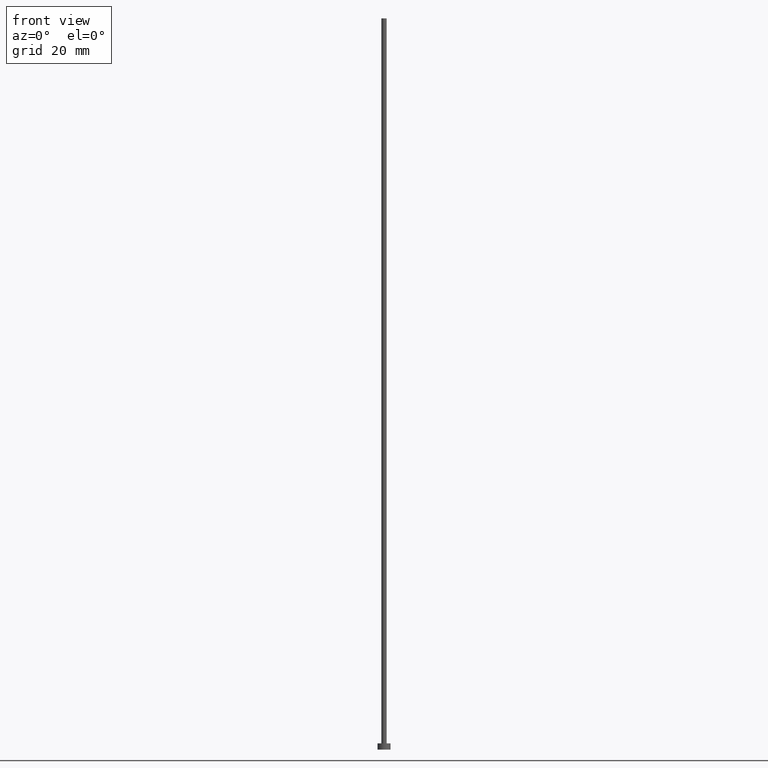
[diagram: clean part render]
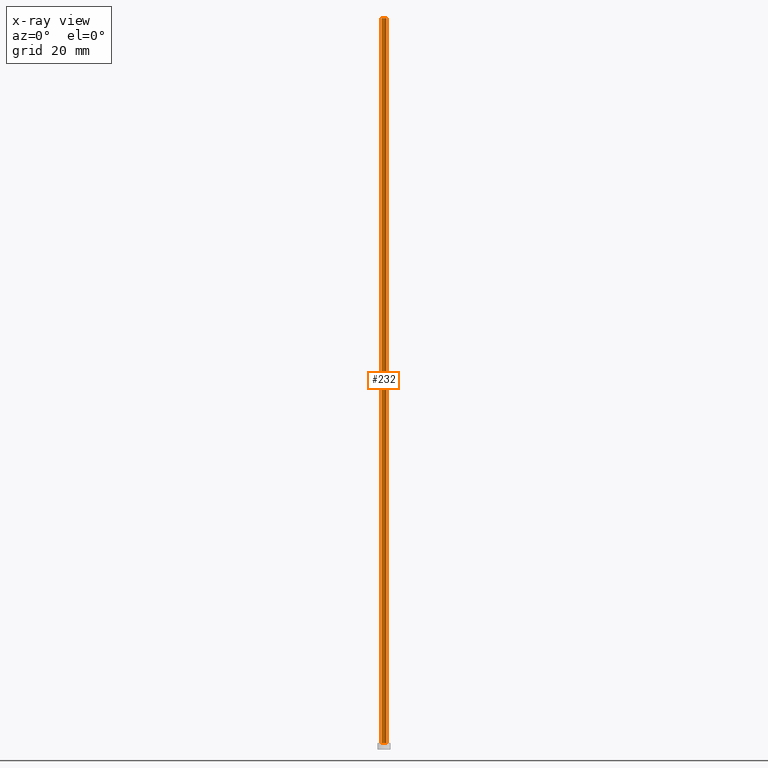
[diagram: x-ray — body ghosted, one internal face saturated and labeled with its STEP entity id]
A machine part, front view, then the same camera in x-ray: the body is ghosted and one INTERNAL B-rep face — a face not visible from any outside direction — is saturated and labeled: STEP entity #232.
In plain terms, the highlighted cylindrical surface (edge-blend (fillet) strip) has radius 0.5 mm, axis along (-0, -0, -1).
Its self-contained STEP definition (entity closure, byte-faithful):
#3 = VECTOR ( 'NONE', #30, 1000.000000000000000 ) ;
#10 = DIRECTION ( 'NONE',  ( -0.000000000000000000, -0.000000000000000000, -1.000000000000000000 ) ) ;
#30 = DIRECTION ( 'NONE',  ( -0.000000000000000000, -0.000000000000000000, -1.000000000000000000 ) ) ;
#31 = LINE ( 'NONE', #204, #143 ) ;
#34 = ORIENTED_EDGE ( 'NONE', *, *, #63, .F. ) ;
#38 = DIRECTION ( 'NONE',  ( 1.000000000000000000, 0.000000000000000000, 0.000000000000000000 ) ) ;
#39 = CIRCLE ( 'NONE', #64, 0.5000000000000000000 ) ;
#40 = VERTEX_POINT ( 'NONE', #215 ) ;
#48 = CARTESIAN_POINT ( 'NONE',  ( -0.5000000000000000000, 0.000000000000000000, 140.0000000000000000 ) ) ;
#56 = DIRECTION ( 'NONE',  ( 1.000000000000000000, 0.000000000000000000, 0.000000000000000000 ) ) ;
#57 = ORIENTED_EDGE ( 'NONE', *, *, #81, .T. ) ;
#63 = EDGE_CURVE ( 'NONE', #71, #117, #88, .T. ) ;
#64 = AXIS2_PLACEMENT_3D ( 'NONE', #73, #213, #38 ) ;
#71 = VERTEX_POINT ( 'NONE', #132 ) ;
#73 = CARTESIAN_POINT ( 'NONE',  ( 0.000000000000000000, 0.000000000000000000, 1.199999999999999956 ) ) ;
#77 = CARTESIAN_POINT ( 'NONE',  ( 0.000000000000000000, 0.000000000000000000, 140.0000000000000000 ) ) ;
#81 = EDGE_CURVE ( 'NONE', #187, #40, #39, .T. ) ;
#88 = CIRCLE ( 'NONE', #115, 0.5000000000000000000 ) ;
#96 = ORIENTED_EDGE ( 'NONE', *, *, #254, .F. ) ;
#115 = AXIS2_PLACEMENT_3D ( 'NONE', #77, #235, #56 ) ;
#117 = VERTEX_POINT ( 'NONE', #48 ) ;
#118 = EDGE_LOOP ( 'NONE', ( #34, #152, #57, #96 ) ) ;
#132 = CARTESIAN_POINT ( 'NONE',  ( 0.5000000000000000000, 6.123233995736766036E-17, 140.0000000000000000 ) ) ;
#138 = AXIS2_PLACEMENT_3D ( 'NONE', #141, #203, #210 ) ;
#141 = CARTESIAN_POINT ( 'NONE',  ( 0.000000000000000000, 0.000000000000000000, 140.0000000000000000 ) ) ;
#143 = VECTOR ( 'NONE', #10, 1000.000000000000000 ) ;
#152 = ORIENTED_EDGE ( 'NONE', *, *, #245, .T. ) ;
#158 = FACE_OUTER_BOUND ( 'NONE', #118, .T. ) ;
#160 = CARTESIAN_POINT ( 'NONE',  ( 0.5000000000000000000, 6.123233995736766036E-17, 140.0000000000000000 ) ) ;
#187 = VERTEX_POINT ( 'NONE', #246 ) ;
#203 = DIRECTION ( 'NONE',  ( -0.000000000000000000, -0.000000000000000000, -1.000000000000000000 ) ) ;
#204 = CARTESIAN_POINT ( 'NONE',  ( -0.5000000000000000000, 0.000000000000000000, 140.0000000000000000 ) ) ;
#206 = LINE ( 'NONE', #160, #3 ) ;
#210 = DIRECTION ( 'NONE',  ( -1.000000000000000000, 0.000000000000000000, 0.000000000000000000 ) ) ;
#213 = DIRECTION ( 'NONE',  ( 0.000000000000000000, 0.000000000000000000, 1.000000000000000000 ) ) ;
#215 = CARTESIAN_POINT ( 'NONE',  ( -0.5000000000000000000, 0.000000000000000000, 1.199999999999999956 ) ) ;
#232 = ADVANCED_FACE ( 'NONE', ( #158 ), #244, .T. ) ;
#235 = DIRECTION ( 'NONE',  ( 0.000000000000000000, 0.000000000000000000, 1.000000000000000000 ) ) ;
#244 = CYLINDRICAL_SURFACE ( 'NONE', #138, 0.5000000000000000000 ) ;
#245 = EDGE_CURVE ( 'NONE', #71, #187, #206, .T. ) ;
#246 = CARTESIAN_POINT ( 'NONE',  ( 0.5000000000000000000, 6.123233995736766036E-17, 1.199999999999999956 ) ) ;
#254 = EDGE_CURVE ( 'NONE', #117, #40, #31, .T. ) ;